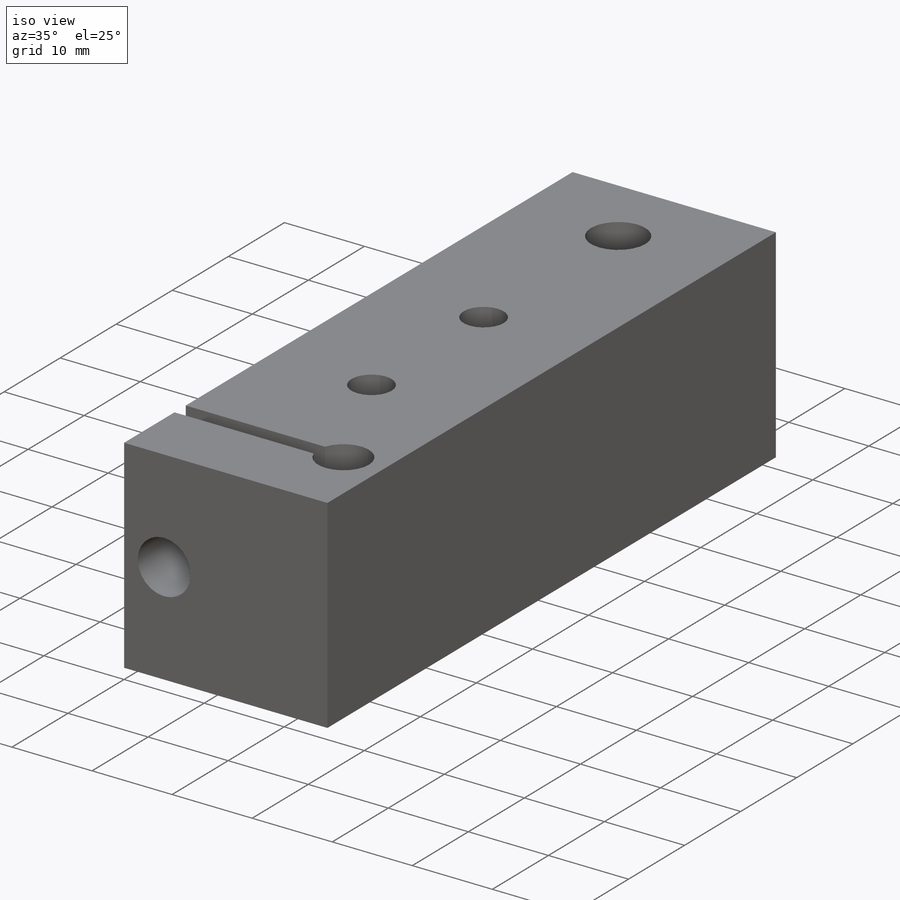
[diagram: iso view]
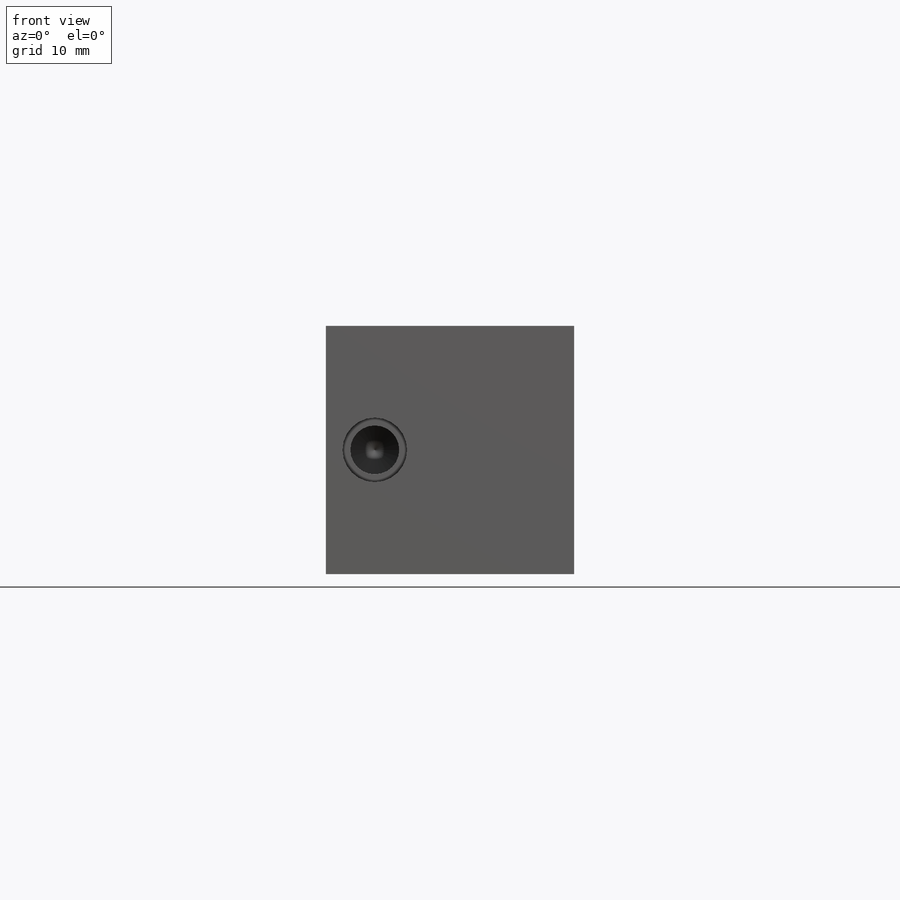
[diagram: front view]
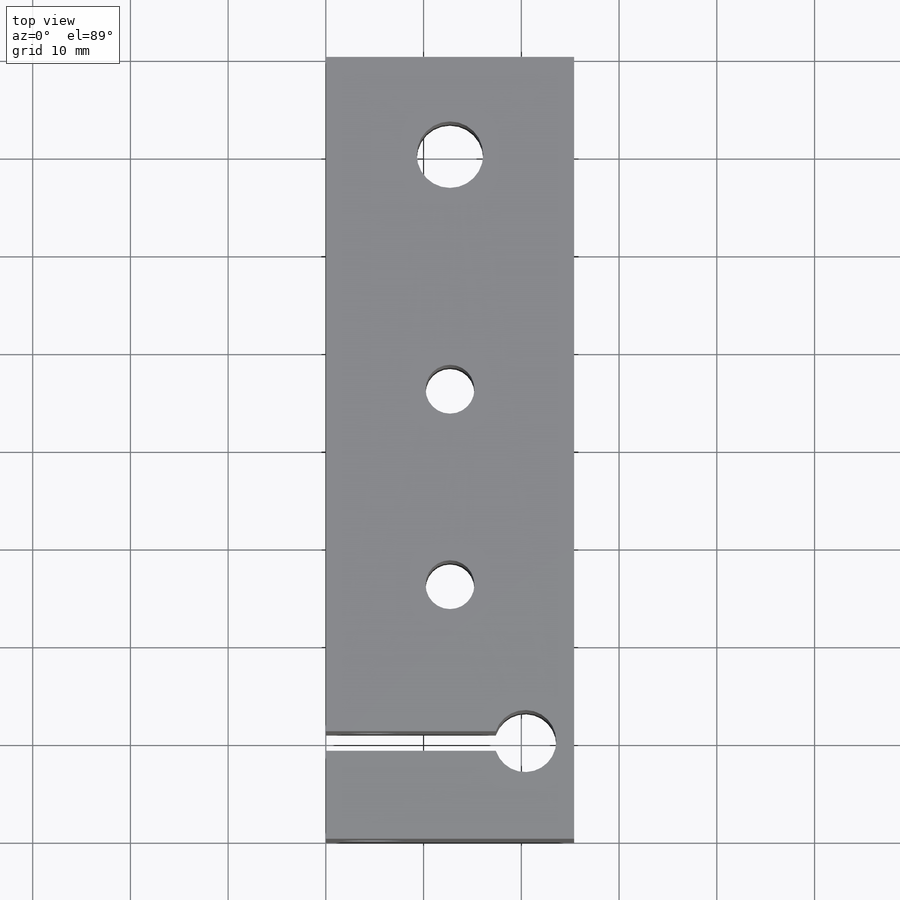
[diagram: top view]
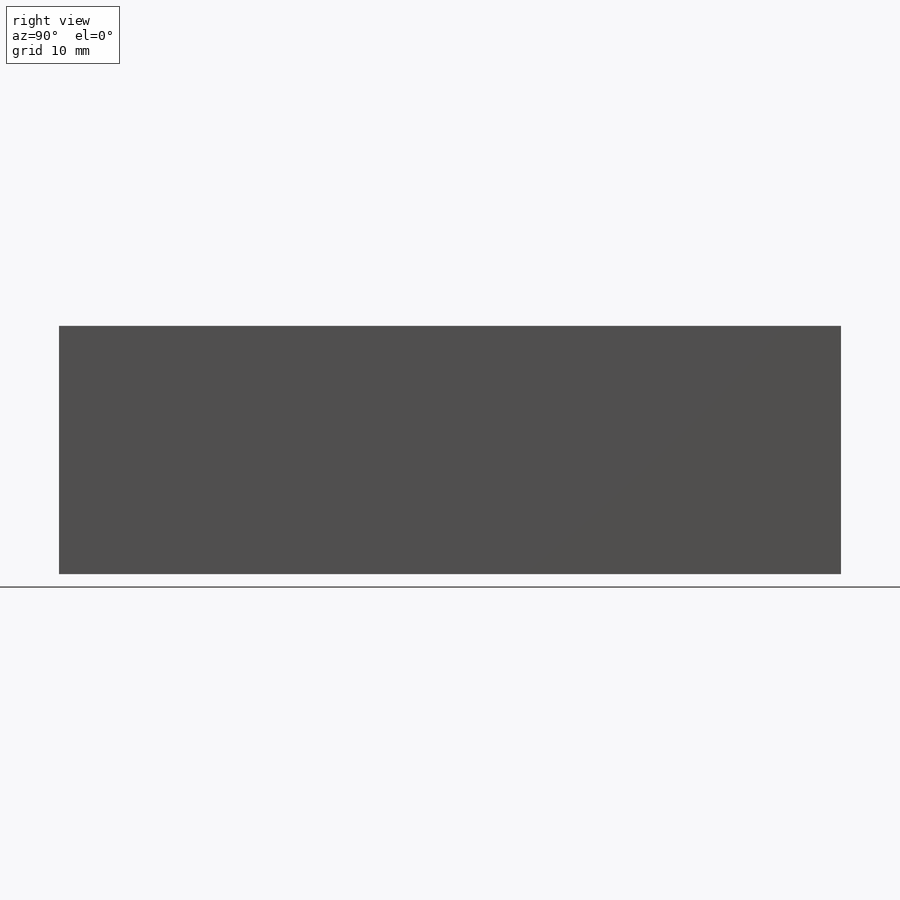
[diagram: right view]
SOLIDWORKS PART (.sldprt)
format: sldprt  version: not decoded by parser v0  size: 295,936 bytes
history: native  units: mm
features: sketch x12, hole x5, thread x4, material x1, extrude x1, cut_extrude x1 (+11 scaffold rows collapsed)
feature tree (35):
  scaffold x11  (default folders/planes/origin — collapsed)
  material  "Material <not specified>"
  sketch  "Sketch1"  dims[D1=25.4mm D2=80.0mm]
  extrude  "Boss-Extrude1"  Depth=25.4mm
  hole  "1/4 (0.25) Diameter Hole1"  Diameter=6.35mm Depth=25.4mm
  sketch  "Sketch3"  dims[D1=10.0mm D2=5.0mm]
  sketch  "Sketch2"  dims[hole-wizard template sketch: 60 standard entries collapsed; hole parameters kept: c18.Thru Hole Depth=25.4mm]
  sketch  "Sketch4"  dims[D1=2.0mm]
  cut_extrude  "Cut-Extrude1"  [1 undecoded]
  hole  "M6 Clearance Hole1"  Diameter=6.6mm Depth=8.999mm
  sketch  "Sketch6"  dims[D1=5.0mm]
  sketch  "Sketch5"  dims[hole-wizard template sketch: 46 standard entries collapsed; hole parameters kept: c15.Hole Dia.=6.6mm c15.Hole Depth=8.999mm c15.D3=~14.816244mm c15.Drill Angle=118.0deg]
  hole  "M6x1.0 Tapped Hole1"  Diameter=5mm Depth=17mm
  sketch  "Sketch8"
  sketch  "Sketch7"  dims[hole-wizard template sketch: 47 standard entries collapsed; hole parameters kept: c15.Tap Drill Depth=17.0mm c15.D3=~14.816244mm c15.Drill Angle=118.0deg]
  thread  "Hole Thread1"  Diameter=12mm  [1 undecoded]
  hole  "M8x1.25 Tapped Hole1"  Diameter=6.8mm Depth=25.4mm
  sketch  "Sketch10"  dims[D1=10.0mm]
  sketch  "Sketch9"  dims[hole-wizard template sketch: 60 standard entries collapsed; hole parameters kept: c18.Thru Tap Drill Depth=25.4mm]
  thread  "Hole Thread2"  Diameter=8mm  [1 undecoded]
  hole  "M6x1.0 Tapped Hole2"  Diameter=5mm Depth=25.399mm
  sketch  "Sketch16"  dims[D1=20.0mm]
  sketch  "Sketch15"  dims[hole-wizard template sketch: 47 standard entries collapsed; hole parameters kept: c15.Tap Drill Depth=25.399mm c15.D3=~14.816244mm c15.Drill Angle=118.0deg]
  thread  "Hole Thread3"  Diameter=12mm  [1 undecoded]
  thread  "Hole Thread4"  Diameter=12mm  [1 undecoded]
decode coverage: 21 of 23 modeling features carry decoded parameters
note: ~ marks probable driven/reference dimensions
note: 5 parameter values undecoded
summary: Diameter pulled from absorbed wizard sketch
note: suppression state not decoded; provenance and decode notes live in map.json
